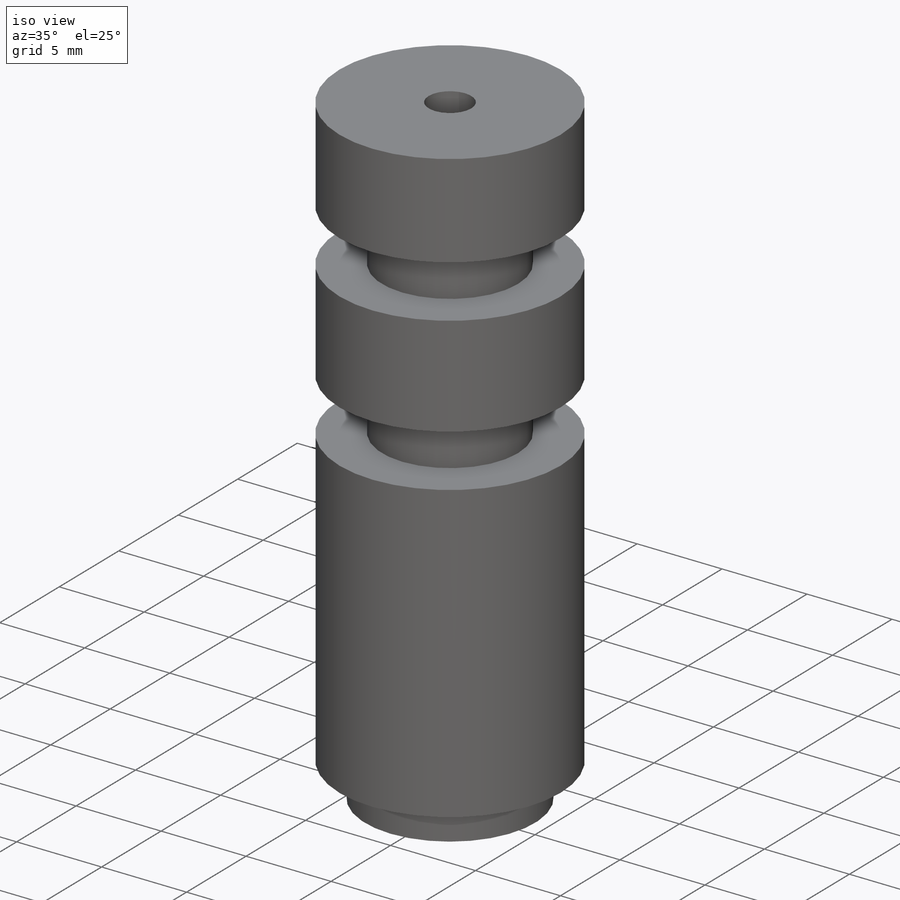
[diagram: iso view]
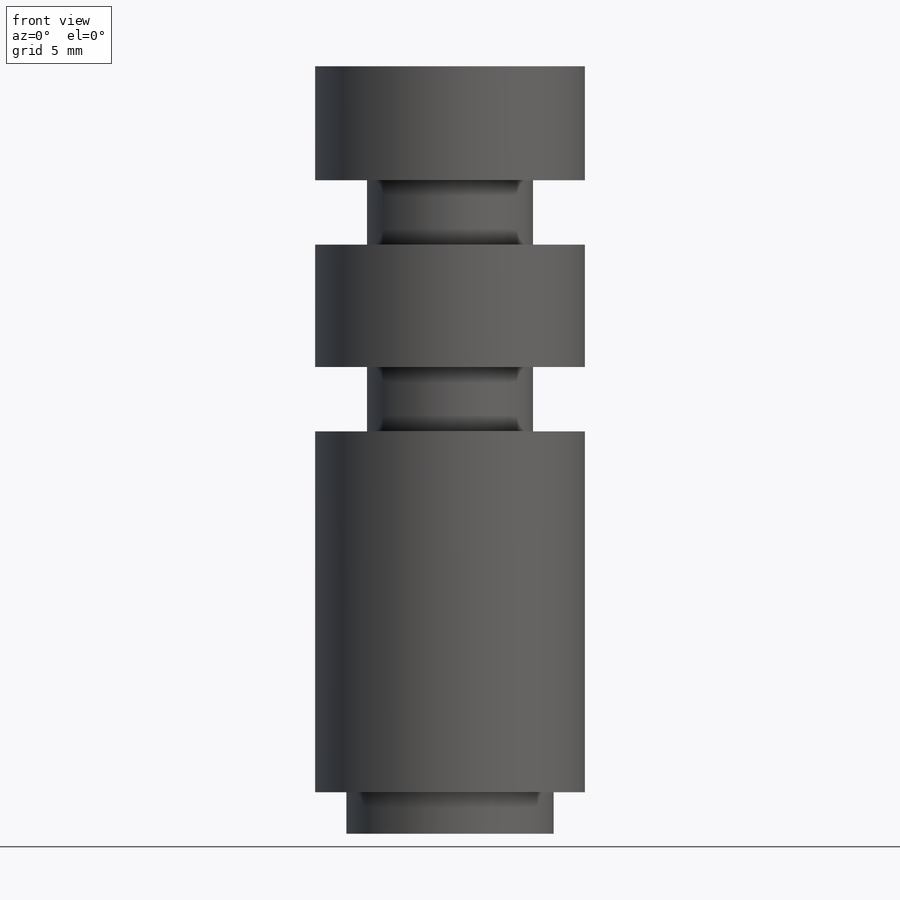
[diagram: front view]
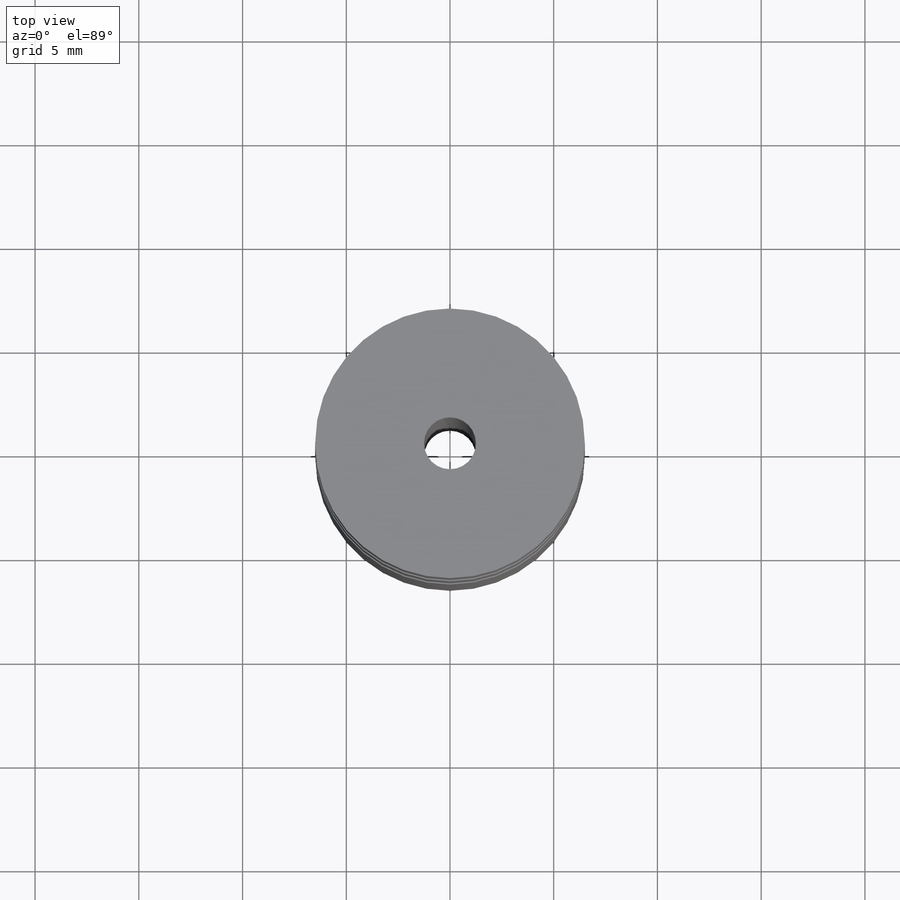
[diagram: top view]
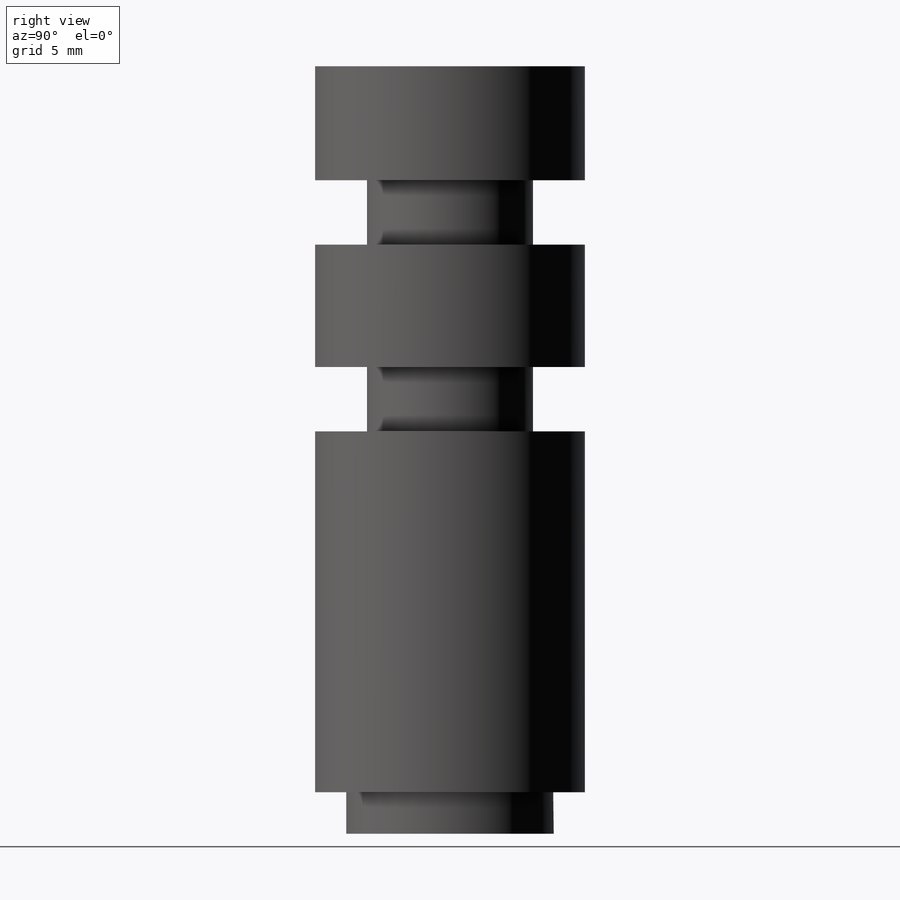
[diagram: right view]
SOLIDWORKS PART (.sldprt)
format: sldprt  version: not decoded by parser v0  size: 167,424 bytes
history: native  units: mm
features: sketch x6, plane x3, cut_extrude x3, extrude x2, material x1, pattern_linear x1 (+8 scaffold rows collapsed)
feature tree (24):
  scaffold x8  (default folders/planes/origin — collapsed)
  material  "Materiale <non specificato>"
  plane  "Piano frontale"
  plane  "Piano superiore"
  plane  "Piano destro"
  sketch  "Schizzo1"  dims[D1=13.0mm]
  extrude  "Estrusione-Estrusione1"  Depth=35mm
  sketch  "Schizzo6"  dims[D1=2.5mm]
  cut_extrude  "Taglio-Estrusione4"  [1 undecoded]
  sketch  "Schizzo3D1"  dims[D2=8.0mm D1=20.5mm]
  cut_extrude  "Taglio-Estrusione5"  Depth=3.1mm
  sketch  "Schizzo7"
  pattern_linear  "Ripetizione a L1"  Count1=2 Count2=1 Spacing1=9mm Spacing2=50mm
  sketch  "Schizzo8"  dims[D1=10.0mm]
  extrude  "Estrusione-Estrusione2"  Depth=2mm
  sketch  "Schizzo9"  dims[D1=2.5mm]
  cut_extrude  "Taglio-Estrusione6"  [1 undecoded]
decode coverage: 9 of 12 modeling features carry decoded parameters
note: 2 parameter values undecoded
note: suppression state not decoded; provenance and decode notes live in map.json
